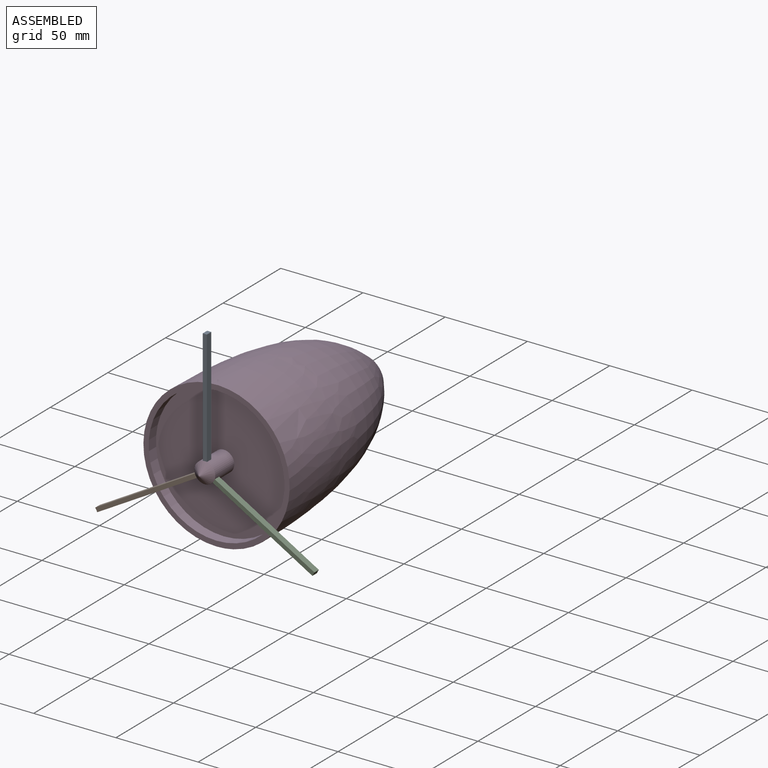
[diagram: assembled view]
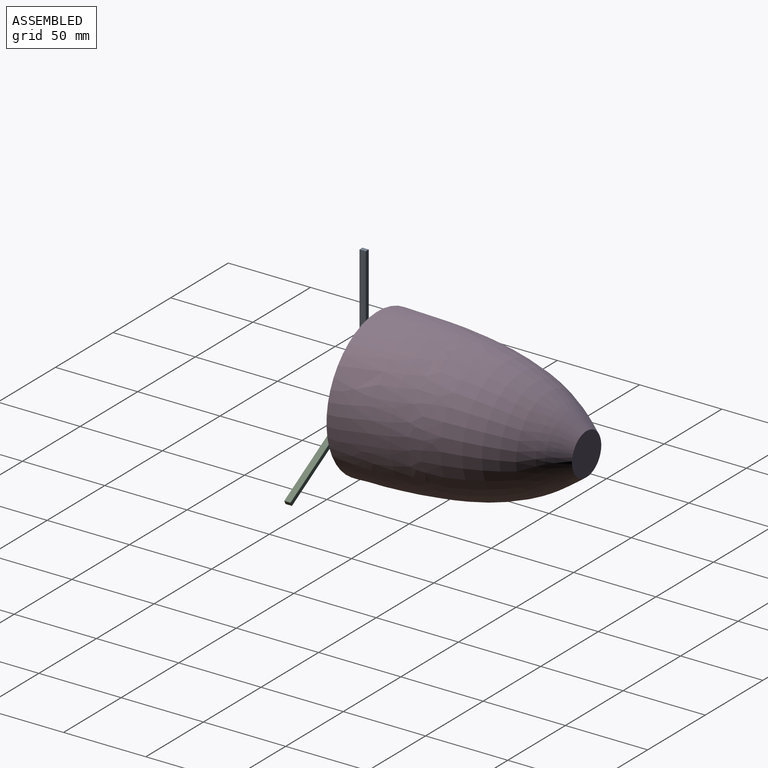
[diagram: assembled view, second angle]
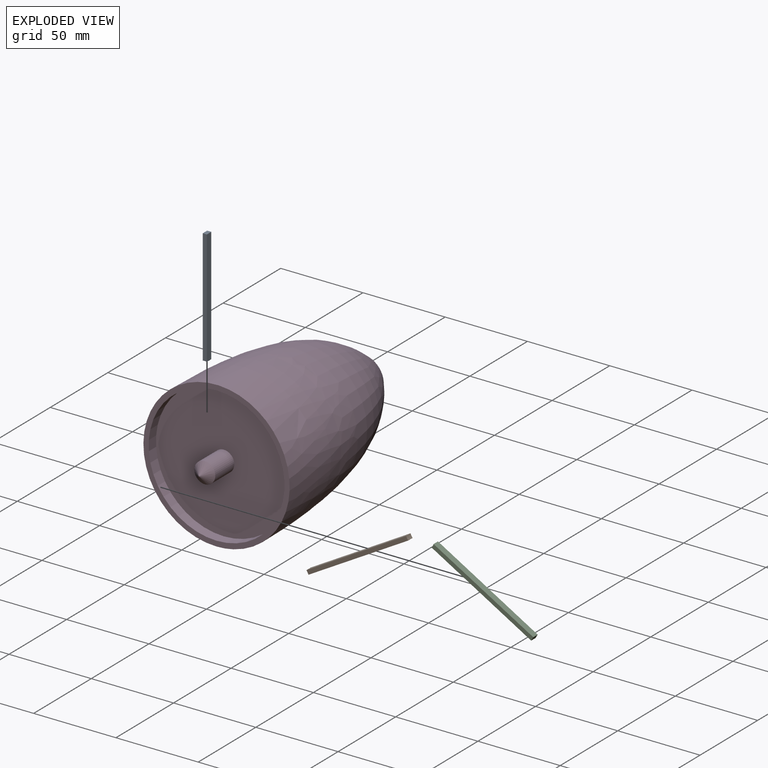
[diagram: exploded view]
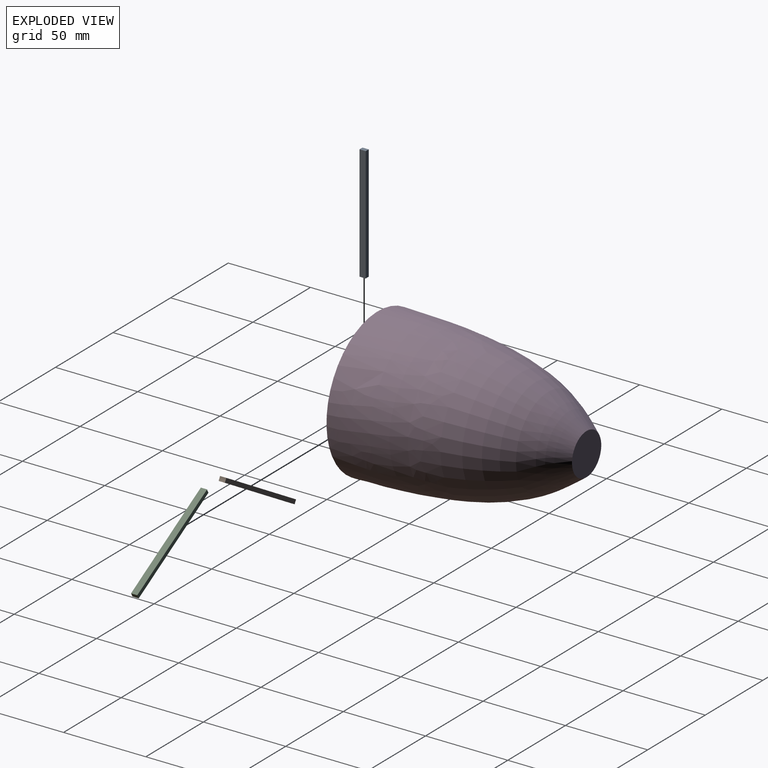
[diagram: exploded view, second angle]
ASSEMBLY  parts=4 mates=3
PART A: 6 faces, bbox 2.5x3.8x70 mm
  f0: plane 69.98x2.54mm, normal (0,-1,0), area 177.5mm2, adj f2,f3,f4,f5
  f1: plane 69.98x2.54mm, normal (0,1,0), area 177.5mm2, adj f2,f3,f4,f5
  f2: cylinder r=6.35mm len=3.81mm, axis (0,1,0), area 9.7mm2, adj f0,f1,f3,f4
  f3: plane 69.98x3.81mm, normal (-1,0,0), area 266.6mm2, adj f0,f1,f2,f5
  f4: plane 69.98x3.81mm, normal (1,0,0), area 266.6mm2, adj f0,f1,f2,f5
  f5: plane 3.81x2.54mm, normal (0,0,1), area 9.7mm2, adj f0,f1,f3,f4
PART B: 6 faces, bbox 61.9x3.8x37.2 mm
  f0: plane 61.87x37.19mm, normal (0,-1,0), area 177.5mm2, adj f2,f3,f4,f5
  f1: plane 61.87x37.19mm, normal (0,1,0), area 177.5mm2, adj f2,f3,f4,f5
  f2: cylinder r=6.35mm len=3.81mm, axis (0,1,0), area 9.7mm2, adj f0,f1,f3,f4
  f3: plane 60.6x34.99mm, normal (-0.5,0,0.87), area 266.6mm2, adj f0,f1,f2,f5
  f4: plane 60.6x34.99mm, normal (0.5,0,-0.87), area 266.6mm2, adj f0,f1,f2,f5
  f5: plane 3.81x2.2mm, normal (-0.87,0,-0.5), area 9.7mm2, adj f0,f1,f3,f4
PART C: 6 faces, bbox 61.9x3.8x37.2 mm
  f0: cylinder r=6.35mm len=3.81mm, axis (0,1,0), area 9.7mm2, adj f1,f2,f3,f4
  f1: plane 61.87x37.19mm, normal (0,-1,0), area 177.5mm2, adj f0,f3,f4,f5
  f2: plane 61.87x37.19mm, normal (0,1,0), area 177.5mm2, adj f0,f3,f4,f5
  f3: plane 60.6x34.99mm, normal (-0.5,0,-0.87), area 266.6mm2, adj f0,f1,f2,f5
  f4: plane 60.6x34.99mm, normal (0.5,0,0.87), area 266.6mm2, adj f0,f1,f2,f5
  f5: plane 3.81x2.2mm, normal (0.87,0,-0.5), area 9.7mm2, adj f1,f2,f3,f4
PART D: 8 faces, bbox 88.9x142.2x88.9 mm
  f0: plane 88.9x88.9mm, normal (0,-1,0), area 855.1mm2, adj f2,f3
  f1: plane 25.4x25.4mm, normal (0,1,0), area 506.6mm2, adj f2
  f2: bspline ~127x88.9mm, area 30196.2mm2, adj f0,f1
  f3: cylinder r=41.27mm len=82.55mm, axis (0,-1,0), area 1646.8mm2, adj f0,f4
  f4: plane 82.55x82.55mm, normal (0,-1,0), area 5225.4mm2, adj f3,f5
  f5: cylinder r=6.35mm len=16.51mm, axis (0,1,0), area 658.7mm2, adj f4,f6
  f6: cone r=6.35mm half-angle=50deg, axis (0,1,0), area 165mm2, adj f5,f7
  f7: plane 0.59x0.59mm, normal (0,-1,0), area 0.3mm2, adj f6
PLACE A t=(-33.91,-42.83,78.6)mm
PLACE B t=(-33.91,-42.83,78.6)mm
PLACE C t=(-33.91,-42.83,78.6)mm
PLACE D t=(-33.91,-42.83,78.6)mm
MATE fastened C.f0 <-> D.f5  axis (0,-1,0) through (-33.91,-52.99,78.6)mm
MATE fastened B.f2 <-> D.f5  axis (0,-1,0) through (-33.91,-52.99,78.6)mm
MATE fastened A.f2 <-> D.f5  axis (0,-1,0) through (-33.91,-52.99,78.6)mm
